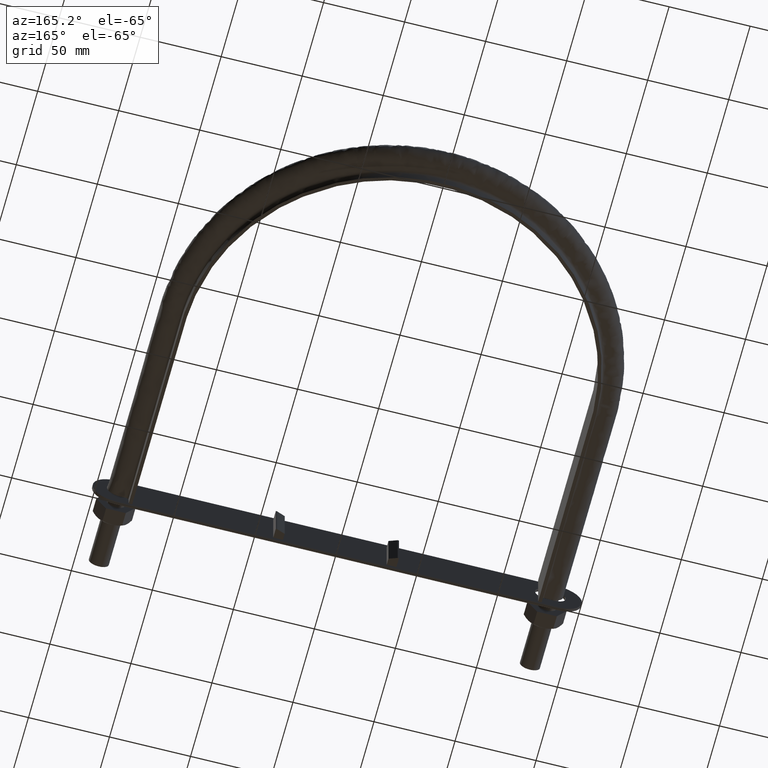
[diagram: clean part render]
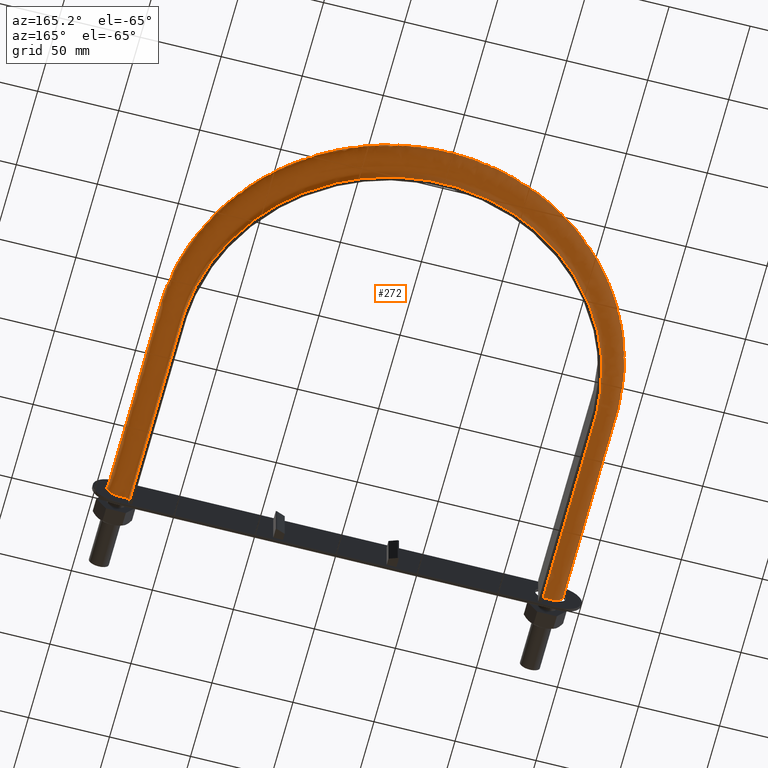
[diagram: same view with one face highlighted and labeled with its STEP entity id]
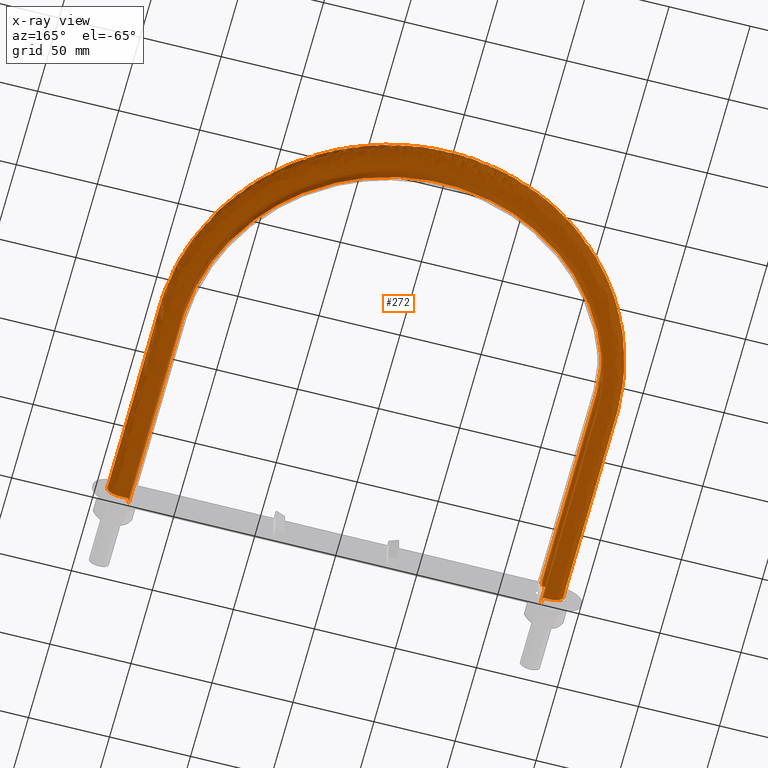
[diagram: x-ray of the same camera — body ghosted, the highlighted face saturated]
A machine part, auxiliary view. The second image highlights one B-rep face of the part: STEP entity #272.
The next image is the same camera in x-ray: the body ghosted, the highlighted face saturated — about 0% of this face is hidden behind the body in this view.
In plain terms, the highlighted face is a freeform B-spline surface patch.
Its self-contained STEP definition (entity closure, byte-faithful):
#272 = ADVANCED_FACE( '', ( #357 ), #358, .F. );
#357 = FACE_OUTER_BOUND( '', #545, .T. );
#358 = B_SPLINE_SURFACE_WITH_KNOTS( '', 3, 3, ( ( #546, #547, #548, #549, #550, #551, #552, #553, #554, #555, #556, #557, #558, #559, #560, #561, #562 ), ( #563, #564, #565, #566, #567, #568, #569, #570, #571, #572, #573, #574, #575, #576, #577, #578, #579 ), ( #580, #581, #582, #583, #584, #585, #586, #587, #588, #589, #590, #591, #592, #593, #594, #595, #596 ), ( #597, #598, #599, #600, #601, #602, #603, #604, #605, #606, #607, #608, #609, #610, #611, #612, #613 ), ( #614, #615, #616, #617, #618, #619, #620, #621, #622, #623, #624, #625, #626, #627, #628, #629, #630 ), ( #631, #632, #633, #634, #635, #636, #637, #638, #639, #640, #641, #642, #643, #644, #645, #646, #647 ), ( #648, #649, #650, #651, #652, #653, #654, #655, #656, #657, #658, #659, #660, #661, #662, #663, #664 ), ( #665, #666, #667, #668, #669, #670, #671, #672, #673, #674, #675, #676, #677, #678, #679, #680, #681 ), ( #682, #683, #684, #685, #686, #687, #688, #689, #690, #691, #692, #693, #694, #695, #696, #697, #698 ), ( #699, #700, #701, #702, #703, #704, #705, #706, #707, #708, #709, #710, #711, #712, #713, #714, #715 ), ( #716, #717, #718, #719, #720, #721, #722, #723, #724, #725, #726, #727, #728, #729, #730, #731, #732 ), ( #733, #734, #735, #736, #737, #738, #739, #740, #741, #742, #743, #744, #745, #746, #747, #748, #749 ), ( #750, #751, #752, #753, #754, #755, #756, #757, #758, #759, #760, #761, #762, #763, #764, #765, #766 ), ( #767, #768, #769, #770, #771, #772, #773, #774, #775, #776, #777, #778, #779, #780, #781, #782, #783 ), ( #784, #785, #786, #787, #788, #789, #790, #791, #792, #793, #794, #795, #796, #797, #798, #799, #800 ), ( #801, #802, #803, #804, #805, #806, #807, #808, #809, #810, #811, #812, #813, #814, #815, #816, #817 ), ( #818, #819, #820, #821, #822, #823, #824, #825, #826, #827, #828, #829, #830, #831, #832, #833, #834 ), ( #835, #836, #837, #838, #839, #840, #841, #842, #843, #844, #845, #846, #847, #848, #849, #850, #851 ), ( #852, #853, #854, #855, #856, #857, #858, #859, #860, #861, #862, #863, #864, #865, #866, #867, #868 ), ( #869, #870, #871, #872, #873, #874, #875, #876, #877, #878, #879, #880, #881, #882, #883, #884, #885 ), ( #886, #887, #888, #889, #890, #891, #892, #893, #894, #895, #896, #897, #898, #899, #900, #901, #902 ), ( #903, #904, #905, #906, #907, #908, #909, #910, #911, #912, #913, #914, #915, #916, #917, #918, #919 ), ( #920, #921, #922, #923, #924, #925, #926, #927, #928, #929, #930, #931, #932, #933, #934, #935, #936 ), ( #937, #938, #939, #940, #941, #942, #943, #944, #945, #946, #947, #948, #949, #950, #951, #952, #953 ), ( #954, #955, #956, #957, #958, #959, #960, #961, #962, #963, #964, #965, #966, #967, #968, #969, #970 ), ( #971, #972, #973, #974, #975, #976, #977, #978, #979, #980, #981, #982, #983, #984, #985, #986, #987 ), ( #988, #989, #990, #991, #992, #993, #994, #995, #996, #997, #998, #999, #1000, #1001, #1002, #1003, #1004 ), ( #1005, #1006, #1007, #1008, #1009, #1010, #1011, #1012, #1013, #1014, #1015, #1016, #1017, #1018, #1019, #1020, #1021 ), ( #1022, #1023, #1024, #1025, #1026, #1027, #1028, #1029, #1030, #1031, #1032, #1033, #1034, #1035, #1036, #1037, #1038 ), ( #1039, #1040, #1041, #1042, #1043, #1044, #1045, #1046, #1047, #1048, #1049, #1050, #1051, #1052, #1053, #1054, #1055 ), ( #1056, #1057, #1058, #1059, #1060, #1061, #1062, #1063, #1064, #1065, #1066, #1067, #1068, #1069, #1070, #1071, #1072 ) ), .UNSPECIFIED., .F., .F., .F., ( 4, 3, 1, 1, 1, 3, 3, 1, 1, 1, 3, 3, 1, 1, 1, 3, 4 ), ( 4, 3, 1, 1, 1, 1, 1, 1, 1, 3, 4 ), ( 0.105263157894737, 0.157894736842105, 0.210526315789474, 0.263157894736842, 0.315789473684211, 0.368421052631579, 0.421052631578947, 0.473684210526316, 0.526315789473684, 0.578947368421053, 0.631578947368421, 0.684210526315789, 0.736842105263158, 0.789473684210526, 0.842105263157895, 0.894736842105263, 0.947368421052632 ), ( 0.000000000000000, 1.00000000000000, 2.00000000000000, 3.00000000000000, 4.00000000000000, 5.00000000000000, 6.00000000000000, 7.00000000000000, 8.00000000000000, 9.00000000000000, 10.0000000000000 ), .UNSPECIFIED. );
#545 = EDGE_LOOP( '', ( #1672, #1673, #1674, #1675 ) );
#546 = CARTESIAN_POINT( '', ( 127.450000000000, 48.5000000000000, -15.0000000000000 ) );
#547 = CARTESIAN_POINT( '', ( 127.450000000000, 89.9166666666666, -15.0000000000000 ) );
#548 = CARTESIAN_POINT( '', ( 127.450000000000, 131.333333333333, -15.0000000000000 ) );
#549 = CARTESIAN_POINT( '', ( 127.450000000000, 172.750000000000, -15.0000000000000 ) );
#550 = CARTESIAN_POINT( '', ( 127.450000000000, 189.421340766093, -15.0000000000000 ) );
#551 = CARTESIAN_POINT( '', ( 120.813917033132, 222.797210917867, -15.0000000000000 ) );
#552 = CARTESIAN_POINT( '', ( 92.4669688954201, 265.215771367909, -15.0000000000000 ) );
#553 = CARTESIAN_POINT( '', ( 50.0427629585410, 293.564259183849, -15.0000000000000 ) );
#554 = CARTESIAN_POINT( '', ( 9.44148659672712E-014, 303.517870408075, -15.0000000000000 ) );
#555 = CARTESIAN_POINT( '', ( -50.0427629585410, 293.564259183849, -15.0000000000000 ) );
#556 = CARTESIAN_POINT( '', ( -92.4669688954201, 265.215771367909, -15.0000000000000 ) );
#557 = CARTESIAN_POINT( '', ( -120.813917033132, 222.797210917867, -15.0000000000000 ) );
#558 = CARTESIAN_POINT( '', ( -127.450000000000, 189.421340766093, -15.0000000000000 ) );
#559 = CARTESIAN_POINT( '', ( -127.450000000000, 172.750000000000, -15.0000000000000 ) );
#560 = CARTESIAN_POINT( '', ( -127.450000000000, 131.333333333333, -15.0000000000000 ) );
#561 = CARTESIAN_POINT( '', ( -127.450000000000, 89.9166666666667, -15.0000000000000 ) );
#562 = CARTESIAN_POINT( '', ( -127.450000000000, 48.5000000000001, -15.0000000000000 ) );
#563 = CARTESIAN_POINT( '', ( 127.450000000000, 48.5000000000000, -13.2666666666667 ) );
#564 = CARTESIAN_POINT( '', ( 127.450000000000, 89.9166666666666, -13.2666666666667 ) );
#565 = CARTESIAN_POINT( '', ( 127.450000000000, 131.333333333333, -13.2666666666667 ) );
#566 = CARTESIAN_POINT( '', ( 127.450000000000, 172.750000000000, -13.2666666666667 ) );
#567 = CARTESIAN_POINT( '', ( 127.450000000000, 189.421340766093, -13.2666666666667 ) );
#568 = CARTESIAN_POINT( '', ( 120.813917033132, 222.797210917867, -13.2666666666667 ) );
#569 = CARTESIAN_POINT( '', ( 92.4669688954201, 265.215771367909, -13.2666666666667 ) );
#570 = CARTESIAN_POINT( '', ( 50.0427629585410, 293.564259183849, -13.2666666666667 ) );
#571 = CARTESIAN_POINT( '', ( 9.44148659672712E-014, 303.517870408075, -13.2666666666667 ) );
#572 = CARTESIAN_POINT( '', ( -50.0427629585410, 293.564259183849, -13.2666666666667 ) );
#573 = CARTESIAN_POINT( '', ( -92.4669688954201, 265.215771367909, -13.2666666666667 ) );
#574 = CARTESIAN_POINT( '', ( -120.813917033132, 222.797210917867, -13.2666666666667 ) );
#575 = CARTESIAN_POINT( '', ( -127.450000000000, 189.421340766093, -13.2666666666667 ) );
#576 = CARTESIAN_POINT( '', ( -127.450000000000, 172.750000000000, -13.2666666666667 ) );
#577 = CARTESIAN_POINT( '', ( -127.450000000000, 131.333333333333, -13.2666666666667 ) );
#578 = CARTESIAN_POINT( '', ( -127.450000000000, 89.9166666666667, -13.2666666666667 ) );
#579 = CARTESIAN_POINT( '', ( -127.450000000000, 48.5000000000001, -13.2666666666667 ) );
#580 = CARTESIAN_POINT( '', ( 127.450000000000, 48.5000000000000, -11.5333333333333 ) );
#581 = CARTESIAN_POINT( '', ( 127.450000000000, 89.9166666666666, -11.5333333333333 ) );
#582 = CARTESIAN_POINT( '', ( 127.450000000000, 131.333333333333, -11.5333333333333 ) );
#583 = CARTESIAN_POINT( '', ( 127.450000000000, 172.750000000000, -11.5333333333333 ) );
#584 = CARTESIAN_POINT( '', ( 127.450000000000, 189.421340766093, -11.5333333333333 ) );
#585 = CARTESIAN_POINT( '', ( 120.813917033132, 222.797210917867, -11.5333333333333 ) );
#586 = CARTESIAN_POINT( '', ( 92.4669688954201, 265.215771367909, -11.5333333333333 ) );
#587 = CARTESIAN_POINT( '', ( 50.0427629585411, 293.564259183849, -11.5333333333333 ) );
#588 = CARTESIAN_POINT( '', ( 9.44148659672712E-014, 303.517870408075, -11.5333333333333 ) );
#589 = CARTESIAN_POINT( '', ( -50.0427629585410, 293.564259183849, -11.5333333333333 ) );
#590 = CARTESIAN_POINT( '', ( -92.4669688954201, 265.215771367909, -11.5333333333333 ) );
#591 = CARTESIAN_POINT( '', ( -120.813917033132, 222.797210917867, -11.5333333333333 ) );
#592 = CARTESIAN_POINT( '', ( -127.450000000000, 189.421340766093, -11.5333333333333 ) );
#593 = CARTESIAN_POINT( '', ( -127.450000000000, 172.750000000000, -11.5333333333333 ) );
#594 = CARTESIAN_POINT( '', ( -127.450000000000, 131.333333333333, -11.5333333333333 ) );
#595 = CARTESIAN_POINT( '', ( -127.450000000000, 89.9166666666667, -11.5333333333333 ) );
#596 = CARTESIAN_POINT( '', ( -127.450000000000, 48.5000000000001, -11.5333333333333 ) );
#597 = CARTESIAN_POINT( '', ( 127.450000000000, 48.5000000000000, -9.79999999999998 ) );
#598 = CARTESIAN_POINT( '', ( 127.450000000000, 89.9166666666666, -9.79999999999998 ) );
#599 = CARTESIAN_POINT( '', ( 127.450000000000, 131.333333333333, -9.79999999999998 ) );
#600 = CARTESIAN_POINT( '', ( 127.450000000000, 172.750000000000, -9.79999999999998 ) );
#601 = CARTESIAN_POINT( '', ( 127.450000000000, 189.421340766093, -9.79999999999999 ) );
#602 = CARTESIAN_POINT( '', ( 120.813917033132, 222.797210917867, -9.80000000000000 ) );
#603 = CARTESIAN_POINT( '', ( 92.4669688954201, 265.215771367909, -9.79999999999998 ) );
#604 = CARTESIAN_POINT( '', ( 50.0427629585411, 293.564259183849, -9.80000000000000 ) );
#605 = CARTESIAN_POINT( '', ( 9.61495894432480E-014, 303.517870408076, -9.79999999999999 ) );
#606 = CARTESIAN_POINT( '', ( -50.0427629585410, 293.564259183849, -9.79999999999998 ) );
#607 = CARTESIAN_POINT( '', ( -92.4669688954201, 265.215771367909, -9.79999999999999 ) );
#608 = CARTESIAN_POINT( '', ( -120.813917033132, 222.797210917867, -9.80000000000000 ) );
#609 = CARTESIAN_POINT( '', ( -127.450000000000, 189.421340766093, -9.79999999999998 ) );
#610 = CARTESIAN_POINT( '', ( -127.450000000000, 172.750000000000, -9.79999999999998 ) );
#611 = CARTESIAN_POINT( '', ( -127.450000000000, 131.333333333333, -9.79999999999998 ) );
#612 = CARTESIAN_POINT( '', ( -127.450000000000, 89.9166666666667, -9.79999999999998 ) );
#613 = CARTESIAN_POINT( '', ( -127.450000000000, 48.5000000000001, -9.79999999999998 ) );
#614 = CARTESIAN_POINT( '', ( 127.450000000000, 48.5000000000000, -9.53823584172332 ) );
#615 = CARTESIAN_POINT( '', ( 127.450000000000, 89.9166666666666, -9.53823584172332 ) );
#616 = CARTESIAN_POINT( '', ( 127.450000000000, 131.333333333333, -9.53823584172332 ) );
#617 = CARTESIAN_POINT( '', ( 127.450000000000, 172.750000000000, -9.53823584172332 ) );
#618 = CARTESIAN_POINT( '', ( 127.450000000000, 189.421340766093, -9.53823584172332 ) );
#619 = CARTESIAN_POINT( '', ( 120.813917033132, 222.797210917867, -9.53823584172333 ) );
#620 = CARTESIAN_POINT( '', ( 92.4669688954201, 265.215771367909, -9.53823584172332 ) );
#621 = CARTESIAN_POINT( '', ( 50.0427629585411, 293.564259183849, -9.53823584172333 ) );
#622 = CARTESIAN_POINT( '', ( 9.61495894432480E-014, 303.517870408075, -9.53823584172333 ) );
#623 = CARTESIAN_POINT( '', ( -50.0427629585410, 293.564259183849, -9.53823584172332 ) );
#624 = CARTESIAN_POINT( '', ( -92.4669688954201, 265.215771367909, -9.53823584172333 ) );
#625 = CARTESIAN_POINT( '', ( -120.813917033132, 222.797210917867, -9.53823584172333 ) );
#626 = CARTESIAN_POINT( '', ( -127.450000000000, 189.421340766093, -9.53823584172332 ) );
#627 = CARTESIAN_POINT( '', ( -127.450000000000, 172.750000000000, -9.53823584172332 ) );
#628 = CARTESIAN_POINT( '', ( -127.450000000000, 131.333333333333, -9.53823584172332 ) );
#629 = CARTESIAN_POINT( '', ( -127.450000000000, 89.9166666666667, -9.53823584172332 ) );
#630 = CARTESIAN_POINT( '', ( -127.450000000000, 48.5000000000001, -9.53823584172332 ) );
#631 = CARTESIAN_POINT( '', ( 127.554136256836, 48.5000000000000, -9.01470752516999 ) );
#632 = CARTESIAN_POINT( '', ( 127.554136256836, 89.9166666666666, -9.01470752516999 ) );
#633 = CARTESIAN_POINT( '', ( 127.554136256836, 131.333333333333, -9.01470752516999 ) );
#634 = CARTESIAN_POINT( '', ( 127.554136256836, 172.750000000000, -9.01470752516999 ) );
#635 = CARTESIAN_POINT( '', ( 127.554136256836, 189.435150092345, -9.01470752517000 ) );
#636 = CARTESIAN_POINT( '', ( 120.912631109974, 222.838016168944, -9.01470752517000 ) );
#637 = CARTESIAN_POINT( '', ( 92.5425213789174, 265.291346320962, -9.01470752516999 ) );
#638 = CARTESIAN_POINT( '', ( 50.0836516679662, 293.662966840818, -9.01470752517000 ) );
#639 = CARTESIAN_POINT( '', ( 9.78973979062978E-014, 303.624720964845, -9.01470752517000 ) );
#640 = CARTESIAN_POINT( '', ( -50.0836516679661, 293.662966840818, -9.01470752516999 ) );
#641 = CARTESIAN_POINT( '', ( -92.5425213789174, 265.291346320962, -9.01470752517000 ) );
#642 = CARTESIAN_POINT( '', ( -120.912631109974, 222.838016168944, -9.01470752517001 ) );
#643 = CARTESIAN_POINT( '', ( -127.554136256836, 189.435150092345, -9.01470752516999 ) );
#644 = CARTESIAN_POINT( '', ( -127.554136256836, 172.750000000000, -9.01470752516999 ) );
#645 = CARTESIAN_POINT( '', ( -127.554136256836, 131.333333333333, -9.01470752516999 ) );
#646 = CARTESIAN_POINT( '', ( -127.554136256836, 89.9166666666667, -9.01470752516999 ) );
#647 = CARTESIAN_POINT( '', ( -127.554136256836, 48.5000000000001, -9.01470752516999 ) );
#648 = CARTESIAN_POINT( '', ( 127.998968710939, 48.5000000000000, -8.34896871093886 ) );
#649 = CARTESIAN_POINT( '', ( 127.998968710939, 89.9166666666666, -8.34896871093886 ) );
#650 = CARTESIAN_POINT( '', ( 127.998968710939, 131.333333333333, -8.34896871093886 ) );
#651 = CARTESIAN_POINT( '', ( 127.998968710939, 172.750000000000, -8.34896871093886 ) );
#652 = CARTESIAN_POINT( '', ( 127.998968710939, 189.494138543367, -8.34896871093886 ) );
#653 = CARTESIAN_POINT( '', ( 121.334301970732, 223.012321454424, -8.34896871093887 ) );
#654 = CARTESIAN_POINT( '', ( 92.8652542835641, 265.614175207428, -8.34896871093886 ) );
#655 = CARTESIAN_POINT( '', ( 50.2583134573498, 294.084610278199, -8.34896871093887 ) );
#656 = CARTESIAN_POINT( '', ( 9.79532922421267E-014, 304.081147927309, -8.34896871093886 ) );
#657 = CARTESIAN_POINT( '', ( -50.2583134573497, 294.084610278199, -8.34896871093886 ) );
#658 = CARTESIAN_POINT( '', ( -92.8652542835640, 265.614175207429, -8.34896871093886 ) );
#659 = CARTESIAN_POINT( '', ( -121.334301970732, 223.012321454424, -8.34896871093887 ) );
#660 = CARTESIAN_POINT( '', ( -127.998968710939, 189.494138543367, -8.34896871093886 ) );
#661 = CARTESIAN_POINT( '', ( -127.998968710939, 172.750000000000, -8.34896871093886 ) );
#662 = CARTESIAN_POINT( '', ( -127.998968710939, 131.333333333333, -8.34896871093886 ) );
#663 = CARTESIAN_POINT( '', ( -127.998968710939, 89.9166666666667, -8.34896871093886 ) );
#664 = CARTESIAN_POINT( '', ( -127.998968710939, 48.5000000000001, -8.34896871093886 ) );
#665 = CARTESIAN_POINT( '', ( 128.664707525170, 48.5000000000000, -7.90413625683589 ) );
#666 = CARTESIAN_POINT( '', ( 128.664707525170, 89.9166666666666, -7.90413625683589 ) );
#667 = CARTESIAN_POINT( '', ( 128.664707525170, 131.333333333333, -7.90413625683589 ) );
#668 = CARTESIAN_POINT( '', ( 128.664707525170, 172.750000000000, -7.90413625683589 ) );
#669 = CARTESIAN_POINT( '', ( 128.664707525170, 189.582420999097, -7.90413625683590 ) );
#670 = CARTESIAN_POINT( '', ( 121.965377010891, 223.273187749137, -7.90413625683590 ) );
#671 = CARTESIAN_POINT( '', ( 93.3482582084600, 266.097322779270, -7.90413625683589 ) );
#672 = CARTESIAN_POINT( '', ( 50.5197132978587, 294.715644276374, -7.90413625683590 ) );
#673 = CARTESIAN_POINT( '', ( 9.63022205512518E-014, 304.764239149568, -7.90413625683590 ) );
#674 = CARTESIAN_POINT( '', ( -50.5197132978587, 294.715644276374, -7.90413625683589 ) );
#675 = CARTESIAN_POINT( '', ( -93.3482582084599, 266.097322779269, -7.90413625683590 ) );
#676 = CARTESIAN_POINT( '', ( -121.965377010891, 223.273187749137, -7.90413625683590 ) );
#677 = CARTESIAN_POINT( '', ( -128.664707525170, 189.582420999097, -7.90413625683589 ) );
#678 = CARTESIAN_POINT( '', ( -128.664707525170, 172.750000000000, -7.90413625683589 ) );
#679 = CARTESIAN_POINT( '', ( -128.664707525170, 131.333333333333, -7.90413625683589 ) );
#680 = CARTESIAN_POINT( '', ( -128.664707525170, 89.9166666666667, -7.90413625683589 ) );
#681 = CARTESIAN_POINT( '', ( -128.664707525170, 48.5000000000001, -7.90413625683589 ) );
#682 = CARTESIAN_POINT( '', ( 129.188235841723, 48.5000000000000, -7.79999999999998 ) );
#683 = CARTESIAN_POINT( '', ( 129.188235841723, 89.9166666666666, -7.79999999999998 ) );
#684 = CARTESIAN_POINT( '', ( 129.188235841723, 131.333333333333, -7.79999999999998 ) );
#685 = CARTESIAN_POINT( '', ( 129.188235841723, 172.750000000000, -7.79999999999998 ) );
#686 = CARTESIAN_POINT( '', ( 129.188235841723, 189.651845170321, -7.79999999999999 ) );
#687 = CARTESIAN_POINT( '', ( 122.461646187828, 223.478329599360, -7.79999999999999 ) );
#688 = CARTESIAN_POINT( '', ( 93.7280861924742, 266.477263725367, -7.79999999999998 ) );
#689 = CARTESIAN_POINT( '', ( 50.7252747215336, 295.211881178430, -7.79999999999999 ) );
#690 = CARTESIAN_POINT( '', ( 9.81027266994942E-014, 305.301413173370, -7.79999999999999 ) );
#691 = CARTESIAN_POINT( '', ( -50.7252747215336, 295.211881178430, -7.79999999999998 ) );
#692 = CARTESIAN_POINT( '', ( -93.7280861924741, 266.477263725367, -7.79999999999999 ) );
#693 = CARTESIAN_POINT( '', ( -122.461646187827, 223.478329599360, -7.79999999999999 ) );
#694 = CARTESIAN_POINT( '', ( -129.188235841723, 189.651845170321, -7.79999999999998 ) );
#695 = CARTESIAN_POINT( '', ( -129.188235841723, 172.750000000000, -7.79999999999998 ) );
#696 = CARTESIAN_POINT( '', ( -129.188235841723, 131.333333333333, -7.79999999999998 ) );
#697 = CARTESIAN_POINT( '', ( -129.188235841723, 89.9166666666667, -7.79999999999998 ) );
#698 = CARTESIAN_POINT( '', ( -129.188235841723, 48.5000000000001, -7.79999999999998 ) );
#699 = CARTESIAN_POINT( '', ( 129.450000000000, 48.5000000000000, -7.79999999999998 ) );
#700 = CARTESIAN_POINT( '', ( 129.450000000000, 89.9166666666666, -7.79999999999998 ) );
#701 = CARTESIAN_POINT( '', ( 129.450000000000, 131.333333333333, -7.79999999999998 ) );
#702 = CARTESIAN_POINT( '', ( 129.450000000000, 172.750000000000, -7.79999999999998 ) );
#703 = CARTESIAN_POINT( '', ( 129.450000000000, 189.686557255933, -7.79999999999999 ) );
#704 = CARTESIAN_POINT( '', ( 122.709780776296, 223.580900524471, -7.79999999999999 ) );
#705 = CARTESIAN_POINT( '', ( 93.9180001844813, 266.667234198416, -7.79999999999998 ) );
#706 = CARTESIAN_POINT( '', ( 50.8280554333711, 295.459999629457, -7.79999999999999 ) );
#707 = CARTESIAN_POINT( '', ( 9.29314476076967E-014, 305.570000185271, -7.79999999999999 ) );
#708 = CARTESIAN_POINT( '', ( -50.8280554333710, 295.459999629457, -7.79999999999998 ) );
#709 = CARTESIAN_POINT( '', ( -93.9180001844812, 266.667234198415, -7.79999999999999 ) );
#710 = CARTESIAN_POINT( '', ( -122.709780776296, 223.580900524472, -7.79999999999999 ) );
#711 = CARTESIAN_POINT( '', ( -129.450000000000, 189.686557255933, -7.79999999999998 ) );
#712 = CARTESIAN_POINT( '', ( -129.450000000000, 172.750000000000, -7.79999999999998 ) );
#713 = CARTESIAN_POINT( '', ( -129.450000000000, 131.333333333333, -7.79999999999998 ) );
#714 = CARTESIAN_POINT( '', ( -129.450000000000, 89.9166666666667, -7.79999999999998 ) );
#715 = CARTESIAN_POINT( '', ( -129.450000000000, 48.5000000000001, -7.79999999999998 ) );
#716 = CARTESIAN_POINT( '', ( 130.633333333333, 48.5000000000000, -7.79999999999999 ) );
#717 = CARTESIAN_POINT( '', ( 130.633333333333, 89.9166666666666, -7.79999999999999 ) );
#718 = CARTESIAN_POINT( '', ( 130.633333333333, 131.333333333333, -7.79999999999999 ) );
#719 = CARTESIAN_POINT( '', ( 130.633333333333, 172.750000000000, -7.79999999999999 ) );
#720 = CARTESIAN_POINT( '', ( 130.633333333333, 189.843477012421, -7.79999999999999 ) );
#721 = CARTESIAN_POINT( '', ( 123.831500157668, 224.044583541712, -7.80000000000000 ) );
#722 = CARTESIAN_POINT( '', ( 94.7765270305091, 267.526016373132, -7.79999999999999 ) );
#723 = CARTESIAN_POINT( '', ( 51.2926868143121, 296.581646059776, -7.80000000000000 ) );
#724 = CARTESIAN_POINT( '', ( 9.48148599442114E-014, 306.784176970112, -7.79999999999999 ) );
#725 = CARTESIAN_POINT( '', ( -51.2926868143121, 296.581646059776, -7.79999999999999 ) );
#726 = CARTESIAN_POINT( '', ( -94.7765270305090, 267.526016373132, -7.79999999999999 ) );
#727 = CARTESIAN_POINT( '', ( -123.831500157668, 224.044583541712, -7.80000000000000 ) );
#728 = CARTESIAN_POINT( '', ( -130.633333333333, 189.843477012421, -7.79999999999999 ) );
#729 = CARTESIAN_POINT( '', ( -130.633333333333, 172.750000000000, -7.79999999999999 ) );
#730 = CARTESIAN_POINT( '', ( -130.633333333333, 131.333333333333, -7.79999999999999 ) );
#731 = CARTESIAN_POINT( '', ( -130.633333333333, 89.9166666666667, -7.79999999999999 ) );
#732 = CARTESIAN_POINT( '', ( -130.633333333333, 48.5000000000001, -7.79999999999999 ) );
#733 = CARTESIAN_POINT( '', ( 131.816666666667, 48.5000000000000, -7.79999999999999 ) );
#734 = CARTESIAN_POINT( '', ( 131.816666666667, 89.9166666666666, -7.79999999999999 ) );
#735 = CARTESIAN_POINT( '', ( 131.816666666667, 131.333333333333, -7.79999999999999 ) );
#736 = CARTESIAN_POINT( '', ( 131.816666666667, 172.750000000000, -7.79999999999999 ) );
#737 = CARTESIAN_POINT( '', ( 131.816666666667, 190.000396768910, -7.79999999999999 ) );
#738 = CARTESIAN_POINT( '', ( 124.953219539040, 224.508266558953, -7.80000000000000 ) );
#739 = CARTESIAN_POINT( '', ( 95.6350538765369, 268.384798547848, -7.79999999999999 ) );
#740 = CARTESIAN_POINT( '', ( 51.7573181952532, 297.703292490094, -7.80000000000000 ) );
#741 = CARTESIAN_POINT( '', ( 8.80246549008422E-014, 307.998353754953, -7.79999999999999 ) );
#742 = CARTESIAN_POINT( '', ( -51.7573181952531, 297.703292490094, -7.79999999999999 ) );
#743 = CARTESIAN_POINT( '', ( -95.6350538765369, 268.384798547848, -7.79999999999999 ) );
#744 = CARTESIAN_POINT( '', ( -124.953219539040, 224.508266558953, -7.80000000000000 ) );
#745 = CARTESIAN_POINT( '', ( -131.816666666667, 190.000396768910, -7.79999999999999 ) );
#746 = CARTESIAN_POINT( '', ( -131.816666666667, 172.750000000000, -7.79999999999999 ) );
#747 = CARTESIAN_POINT( '', ( -131.816666666667, 131.333333333333, -7.79999999999999 ) );
#748 = CARTESIAN_POINT( '', ( -131.816666666667, 89.9166666666667, -7.79999999999999 ) );
#749 = CARTESIAN_POINT( '', ( -131.816666666667, 48.5000000000001, -7.79999999999999 ) );
#750 = CARTESIAN_POINT( '', ( 133.000000000000, 48.5000000000000, -7.79999999999999 ) );
#751 = CARTESIAN_POINT( '', ( 133.000000000000, 89.9166666666666, -7.79999999999999 ) );
#752 = CARTESIAN_POINT( '', ( 133.000000000000, 131.333333333333, -7.79999999999999 ) );
#753 = CARTESIAN_POINT( '', ( 133.000000000000, 172.750000000000, -7.79999999999999 ) );
#754 = CARTESIAN_POINT( '', ( 133.000000000000, 190.157316525398, -7.79999999999999 ) );
#755 = CARTESIAN_POINT( '', ( 126.074938920412, 224.971949576194, -7.80000000000000 ) );
#756 = CARTESIAN_POINT( '', ( 96.4935807225647, 269.243580722565, -7.79999999999999 ) );
#757 = CARTESIAN_POINT( '', ( 52.2219495761943, 298.824938920412, -7.80000000000000 ) );
#758 = CARTESIAN_POINT( '', ( 9.16427907133338E-014, 309.212530539794, -7.79999999999999 ) );
#759 = CARTESIAN_POINT( '', ( -52.2219495761942, 298.824938920412, -7.79999999999999 ) );
#760 = CARTESIAN_POINT( '', ( -96.4935807225647, 269.243580722565, -7.79999999999999 ) );
#761 = CARTESIAN_POINT( '', ( -126.074938920412, 224.971949576194, -7.80000000000000 ) );
#762 = CARTESIAN_POINT( '', ( -133.000000000000, 190.157316525398, -7.79999999999999 ) );
#763 = CARTESIAN_POINT( '', ( -133.000000000000, 172.750000000000, -7.79999999999999 ) );
#764 = CARTESIAN_POINT( '', ( -133.000000000000, 131.333333333333, -7.79999999999999 ) );
#765 = CARTESIAN_POINT( '', ( -133.000000000000, 89.9166666666667, -7.79999999999999 ) );
#766 = CARTESIAN_POINT( '', ( -133.000000000000, 48.5000000000001, -7.79999999999999 ) );
#767 = CARTESIAN_POINT( '', ( 135.037390224717, 48.5000000000000, -7.80000000000000 ) );
#768 = CARTESIAN_POINT( '', ( 135.037390224717, 89.9166666666666, -7.80000000000000 ) );
#769 = CARTESIAN_POINT( '', ( 135.037390224717, 131.333333333333, -7.80000000000000 ) );
#770 = CARTESIAN_POINT( '', ( 135.037390224717, 172.750000000000, -7.80000000000000 ) );
#771 = CARTESIAN_POINT( '', ( 135.037390224717, 190.427491267314, -7.80000000000000 ) );
#772 = CARTESIAN_POINT( '', ( 128.006246049271, 225.770290348048, -7.80000000000001 ) );
#773 = CARTESIAN_POINT( '', ( 97.9717392046107, 270.722178813772, -7.80000000000000 ) );
#774 = CARTESIAN_POINT( '', ( 53.0219231820756, 300.756120446654, -7.80000000000001 ) );
#775 = CARTESIAN_POINT( '', ( 8.66946235791930E-014, 311.303025113749, -7.80000000000000 ) );
#776 = CARTESIAN_POINT( '', ( -53.0219231820755, 300.756120446654, -7.80000000000000 ) );
#777 = CARTESIAN_POINT( '', ( -97.9717392046106, 270.722178813772, -7.80000000000000 ) );
#778 = CARTESIAN_POINT( '', ( -128.006246049271, 225.770290348048, -7.80000000000001 ) );
#779 = CARTESIAN_POINT( '', ( -135.037390224717, 190.427491267315, -7.80000000000000 ) );
#780 = CARTESIAN_POINT( '', ( -135.037390224717, 172.750000000000, -7.80000000000000 ) );
#781 = CARTESIAN_POINT( '', ( -135.037390224717, 131.333333333333, -7.80000000000000 ) );
#782 = CARTESIAN_POINT( '', ( -135.037390224717, 89.9166666666667, -7.80000000000000 ) );
#783 = CARTESIAN_POINT( '', ( -135.037390224717, 48.5000000000001, -7.80000000000000 ) );
#784 = CARTESIAN_POINT( '', ( 139.112170674152, 48.5000000000000, -6.11217067415155 ) );
#785 = CARTESIAN_POINT( '', ( 139.112170674152, 89.9166666666666, -6.11217067415155 ) );
#786 = CARTESIAN_POINT( '', ( 139.112170674152, 131.333333333333, -6.11217067415155 ) );
#787 = CARTESIAN_POINT( '', ( 139.112170674152, 172.750000000000, -6.11217067415155 ) );
#788 = CARTESIAN_POINT( '', ( 139.112170674152, 190.967840751147, -6.11217067415155 ) );
#789 = CARTESIAN_POINT( '', ( 131.868860306989, 227.366971891757, -6.11217067415156 ) );
#790 = CARTESIAN_POINT( '', ( 100.928056168703, 273.679374996186, -6.11217067415155 ) );
#791 = CARTESIAN_POINT( '', ( 54.6218703938381, 304.618483499137, -6.11217067415156 ) );
#792 = CARTESIAN_POINT( '', ( 8.02677362628651E-014, 315.484014261659, -6.11217067415155 ) );
#793 = CARTESIAN_POINT( '', ( -54.6218703938381, 304.618483499137, -6.11217067415155 ) );
#794 = CARTESIAN_POINT( '', ( -100.928056168703, 273.679374996186, -6.11217067415155 ) );
#795 = CARTESIAN_POINT( '', ( -131.868860306989, 227.366971891756, -6.11217067415156 ) );
#796 = CARTESIAN_POINT( '', ( -139.112170674151, 190.967840751147, -6.11217067415155 ) );
#797 = CARTESIAN_POINT( '', ( -139.112170674151, 172.750000000000, -6.11217067415155 ) );
#798 = CARTESIAN_POINT( '', ( -139.112170674151, 131.333333333333, -6.11217067415155 ) );
#799 = CARTESIAN_POINT( '', ( -139.112170674151, 89.9166666666667, -6.11217067415155 ) );
#800 = CARTESIAN_POINT( '', ( -139.112170674152, 48.5000000000001, -6.11217067415155 ) );
#801 = CARTESIAN_POINT( '', ( 141.643914662924, 48.5000000000000, -2.58929722408951E-015 ) );
#802 = CARTESIAN_POINT( '', ( 141.643914662924, 89.9166666666666, -2.58929722408951E-015 ) );
#803 = CARTESIAN_POINT( '', ( 141.643914662924, 131.333333333333, -2.58929722408951E-015 ) );
#804 = CARTESIAN_POINT( '', ( 141.643914662924, 172.750000000000, -2.58929722408951E-015 ) );
#805 = CARTESIAN_POINT( '', ( 141.643914662924, 191.303570878085, -2.58929722408951E-015 ) );
#806 = CARTESIAN_POINT( '', ( 134.268781124633, 228.359022617049, -2.58929722408952E-015 ) );
#807 = CARTESIAN_POINT( '', ( 102.764876040503, 275.516741144217, -2.58929722408951E-015 ) );
#808 = CARTESIAN_POINT( '', ( 55.6159501451278, 307.018248237858, -2.58929722408952E-015 ) );
#809 = CARTESIAN_POINT( '', ( 7.71164094198110E-014, 318.081747875457, -2.58929722408951E-015 ) );
#810 = CARTESIAN_POINT( '', ( -55.6159501451277, 307.018248237858, -2.58929722408951E-015 ) );
#811 = CARTESIAN_POINT( '', ( -102.764876040503, 275.516741144217, -2.58929722408951E-015 ) );
#812 = CARTESIAN_POINT( '', ( -134.268781124633, 228.359022617049, -2.58929722408952E-015 ) );
#813 = CARTESIAN_POINT( '', ( -141.643914662924, 191.303570878085, -2.58929722408951E-015 ) );
#814 = CARTESIAN_POINT( '', ( -141.643914662924, 172.750000000000, -2.58929722408951E-015 ) );
#815 = CARTESIAN_POINT( '', ( -141.643914662924, 131.333333333333, -2.58929722408951E-015 ) );
#816 = CARTESIAN_POINT( '', ( -141.643914662924, 89.9166666666667, -2.58929722408951E-015 ) );
#817 = CARTESIAN_POINT( '', ( -141.643914662924, 48.5000000000001, -2.58929722408951E-015 ) );
#818 = CARTESIAN_POINT( '', ( 139.112170674152, 48.5000000000000, 6.11217067415155 ) );
#819 = CARTESIAN_POINT( '', ( 139.112170674152, 89.9166666666666, 6.11217067415155 ) );
#820 = CARTESIAN_POINT( '', ( 139.112170674152, 131.333333333333, 6.11217067415155 ) );
#821 = CARTESIAN_POINT( '', ( 139.112170674152, 172.750000000000, 6.11217067415155 ) );
#822 = CARTESIAN_POINT( '', ( 139.112170674152, 190.967840751147, 6.11217067415155 ) );
#823 = CARTESIAN_POINT( '', ( 131.868860306989, 227.366971891757, 6.11217067415155 ) );
#824 = CARTESIAN_POINT( '', ( 100.928056168703, 273.679374996186, 6.11217067415155 ) );
#825 = CARTESIAN_POINT( '', ( 54.6218703938381, 304.618483499137, 6.11217067415155 ) );
#826 = CARTESIAN_POINT( '', ( 8.37371832148187E-014, 315.484014261659, 6.11217067415155 ) );
#827 = CARTESIAN_POINT( '', ( -54.6218703938381, 304.618483499137, 6.11217067415155 ) );
#828 = CARTESIAN_POINT( '', ( -100.928056168703, 273.679374996186, 6.11217067415155 ) );
#829 = CARTESIAN_POINT( '', ( -131.868860306989, 227.366971891756, 6.11217067415156 ) );
#830 = CARTESIAN_POINT( '', ( -139.112170674151, 190.967840751147, 6.11217067415155 ) );
#831 = CARTESIAN_POINT( '', ( -139.112170674151, 172.750000000000, 6.11217067415155 ) );
#832 = CARTESIAN_POINT( '', ( -139.112170674151, 131.333333333333, 6.11217067415155 ) );
#833 = CARTESIAN_POINT( '', ( -139.112170674151, 89.9166666666667, 6.11217067415155 ) );
#834 = CARTESIAN_POINT( '', ( -139.112170674152, 48.5000000000001, 6.11217067415155 ) );
#835 = CARTESIAN_POINT( '', ( 135.037390224717, 48.5000000000000, 7.80000000000000 ) );
#836 = CARTESIAN_POINT( '', ( 135.037390224717, 89.9166666666666, 7.80000000000000 ) );
#837 = CARTESIAN_POINT( '', ( 135.037390224717, 131.333333333333, 7.80000000000000 ) );
#838 = CARTESIAN_POINT( '', ( 135.037390224717, 172.750000000000, 7.80000000000000 ) );
#839 = CARTESIAN_POINT( '', ( 135.037390224717, 190.427491267314, 7.80000000000000 ) );
#840 = CARTESIAN_POINT( '', ( 128.006246049271, 225.770290348048, 7.80000000000001 ) );
#841 = CARTESIAN_POINT( '', ( 97.9717392046107, 270.722178813772, 7.80000000000000 ) );
#842 = CARTESIAN_POINT( '', ( 53.0219231820756, 300.756120446654, 7.80000000000001 ) );
#843 = CARTESIAN_POINT( '', ( 8.66946235791930E-014, 311.303025113749, 7.80000000000000 ) );
#844 = CARTESIAN_POINT( '', ( -53.0219231820755, 300.756120446654, 7.79999999999999 ) );
#845 = CARTESIAN_POINT( '', ( -97.9717392046106, 270.722178813772, 7.80000000000000 ) );
#846 = CARTESIAN_POINT( '', ( -128.006246049271, 225.770290348048, 7.80000000000001 ) );
#847 = CARTESIAN_POINT( '', ( -135.037390224717, 190.427491267315, 7.80000000000000 ) );
#848 = CARTESIAN_POINT( '', ( -135.037390224717, 172.750000000000, 7.80000000000000 ) );
#849 = CARTESIAN_POINT( '', ( -135.037390224717, 131.333333333333, 7.80000000000000 ) );
#850 = CARTESIAN_POINT( '', ( -135.037390224717, 89.9166666666667, 7.80000000000000 ) );
#851 = CARTESIAN_POINT( '', ( -135.037390224717, 48.5000000000001, 7.80000000000000 ) );
#852 = CARTESIAN_POINT( '', ( 133.000000000000, 48.5000000000000, 7.80000000000000 ) );
#853 = CARTESIAN_POINT( '', ( 133.000000000000, 89.9166666666666, 7.80000000000000 ) );
#854 = CARTESIAN_POINT( '', ( 133.000000000000, 131.333333333333, 7.80000000000000 ) );
#855 = CARTESIAN_POINT( '', ( 133.000000000000, 172.750000000000, 7.80000000000000 ) );
#856 = CARTESIAN_POINT( '', ( 133.000000000000, 190.157316525398, 7.80000000000000 ) );
#857 = CARTESIAN_POINT( '', ( 126.074938920412, 224.971949576194, 7.80000000000001 ) );
#858 = CARTESIAN_POINT( '', ( 96.4935807225648, 269.243580722565, 7.80000000000000 ) );
#859 = CARTESIAN_POINT( '', ( 52.2219495761943, 298.824938920412, 7.80000000000001 ) );
#860 = CARTESIAN_POINT( '', ( 8.64386202854034E-014, 309.212530539794, 7.80000000000000 ) );
#861 = CARTESIAN_POINT( '', ( -52.2219495761942, 298.824938920412, 7.79999999999999 ) );
#862 = CARTESIAN_POINT( '', ( -96.4935807225647, 269.243580722565, 7.80000000000000 ) );
#863 = CARTESIAN_POINT( '', ( -126.074938920412, 224.971949576194, 7.80000000000001 ) );
#864 = CARTESIAN_POINT( '', ( -133.000000000000, 190.157316525398, 7.80000000000000 ) );
#865 = CARTESIAN_POINT( '', ( -133.000000000000, 172.750000000000, 7.80000000000000 ) );
#866 = CARTESIAN_POINT( '', ( -133.000000000000, 131.333333333333, 7.80000000000000 ) );
#867 = CARTESIAN_POINT( '', ( -133.000000000000, 89.9166666666667, 7.80000000000000 ) );
#868 = CARTESIAN_POINT( '', ( -133.000000000000, 48.5000000000001, 7.80000000000000 ) );
#869 = CARTESIAN_POINT( '', ( 131.816666666667, 48.5000000000000, 7.79999999999999 ) );
#870 = CARTESIAN_POINT( '', ( 131.816666666667, 89.9166666666666, 7.79999999999999 ) );
#871 = CARTESIAN_POINT( '', ( 131.816666666667, 131.333333333333, 7.79999999999999 ) );
#872 = CARTESIAN_POINT( '', ( 131.816666666667, 172.750000000000, 7.79999999999999 ) );
#873 = CARTESIAN_POINT( '', ( 131.816666666667, 190.000396768910, 7.79999999999999 ) );
#874 = CARTESIAN_POINT( '', ( 124.953219539040, 224.508266558953, 7.80000000000000 ) );
#875 = CARTESIAN_POINT( '', ( 95.6350538765369, 268.384798547848, 7.79999999999999 ) );
#876 = CARTESIAN_POINT( '', ( 51.7573181952532, 297.703292490094, 7.80000000000000 ) );
#877 = CARTESIAN_POINT( '', ( 8.28204844729118E-014, 307.998353754953, 7.79999999999999 ) );
#878 = CARTESIAN_POINT( '', ( -51.7573181952531, 297.703292490094, 7.79999999999999 ) );
#879 = CARTESIAN_POINT( '', ( -95.6350538765369, 268.384798547848, 7.79999999999999 ) );
#880 = CARTESIAN_POINT( '', ( -124.953219539040, 224.508266558953, 7.80000000000000 ) );
#881 = CARTESIAN_POINT( '', ( -131.816666666667, 190.000396768910, 7.79999999999999 ) );
#882 = CARTESIAN_POINT( '', ( -131.816666666667, 172.750000000000, 7.79999999999999 ) );
#883 = CARTESIAN_POINT( '', ( -131.816666666667, 131.333333333333, 7.79999999999999 ) );
#884 = CARTESIAN_POINT( '', ( -131.816666666667, 89.9166666666667, 7.79999999999999 ) );
#885 = CARTESIAN_POINT( '', ( -131.816666666667, 48.5000000000001, 7.79999999999999 ) );
#886 = CARTESIAN_POINT( '', ( 130.633333333333, 48.5000000000000, 7.79999999999999 ) );
#887 = CARTESIAN_POINT( '', ( 130.633333333333, 89.9166666666666, 7.79999999999999 ) );
#888 = CARTESIAN_POINT( '', ( 130.633333333333, 131.333333333333, 7.79999999999999 ) );
#889 = CARTESIAN_POINT( '', ( 130.633333333333, 172.750000000000, 7.79999999999999 ) );
#890 = CARTESIAN_POINT( '', ( 130.633333333333, 189.843477012421, 7.79999999999999 ) );
#891 = CARTESIAN_POINT( '', ( 123.831500157668, 224.044583541712, 7.80000000000000 ) );
#892 = CARTESIAN_POINT( '', ( 94.7765270305091, 267.526016373132, 7.79999999999999 ) );
#893 = CARTESIAN_POINT( '', ( 51.2926868143121, 296.581646059776, 7.80000000000000 ) );
#894 = CARTESIAN_POINT( '', ( 8.09370721363970E-014, 306.784176970112, 7.79999999999999 ) );
#895 = CARTESIAN_POINT( '', ( -51.2926868143121, 296.581646059776, 7.79999999999999 ) );
#896 = CARTESIAN_POINT( '', ( -94.7765270305091, 267.526016373132, 7.79999999999999 ) );
#897 = CARTESIAN_POINT( '', ( -123.831500157668, 224.044583541712, 7.80000000000000 ) );
#898 = CARTESIAN_POINT( '', ( -130.633333333333, 189.843477012421, 7.79999999999999 ) );
#899 = CARTESIAN_POINT( '', ( -130.633333333333, 172.750000000000, 7.79999999999999 ) );
#900 = CARTESIAN_POINT( '', ( -130.633333333333, 131.333333333333, 7.79999999999999 ) );
#901 = CARTESIAN_POINT( '', ( -130.633333333333, 89.9166666666667, 7.79999999999999 ) );
#902 = CARTESIAN_POINT( '', ( -130.633333333333, 48.5000000000001, 7.79999999999999 ) );
#903 = CARTESIAN_POINT( '', ( 129.450000000000, 48.5000000000000, 7.79999999999999 ) );
#904 = CARTESIAN_POINT( '', ( 129.450000000000, 89.9166666666666, 7.79999999999999 ) );
#905 = CARTESIAN_POINT( '', ( 129.450000000000, 131.333333333333, 7.79999999999999 ) );
#906 = CARTESIAN_POINT( '', ( 129.450000000000, 172.750000000000, 7.79999999999999 ) );
#907 = CARTESIAN_POINT( '', ( 129.450000000000, 189.686557255933, 7.79999999999999 ) );
#908 = CARTESIAN_POINT( '', ( 122.709780776296, 223.580900524471, 7.80000000000000 ) );
#909 = CARTESIAN_POINT( '', ( 93.9180001844812, 266.667234198416, 7.79999999999999 ) );
#910 = CARTESIAN_POINT( '', ( 50.8280554333710, 295.459999629457, 7.80000000000000 ) );
#911 = CARTESIAN_POINT( '', ( 8.42578302278126E-014, 305.570000185271, 7.79999999999999 ) );
#912 = CARTESIAN_POINT( '', ( -50.8280554333710, 295.459999629457, 7.79999999999999 ) );
#913 = CARTESIAN_POINT( '', ( -93.9180001844812, 266.667234198415, 7.79999999999999 ) );
#914 = CARTESIAN_POINT( '', ( -122.709780776296, 223.580900524471, 7.80000000000000 ) );
#915 = CARTESIAN_POINT( '', ( -129.450000000000, 189.686557255933, 7.79999999999999 ) );
#916 = CARTESIAN_POINT( '', ( -129.450000000000, 172.750000000000, 7.79999999999999 ) );
#917 = CARTESIAN_POINT( '', ( -129.450000000000, 131.333333333333, 7.79999999999999 ) );
#918 = CARTESIAN_POINT( '', ( -129.450000000000, 89.9166666666667, 7.79999999999999 ) );
#919 = CARTESIAN_POINT( '', ( -129.450000000000, 48.5000000000001, 7.79999999999999 ) );
#920 = CARTESIAN_POINT( '', ( 129.188235841723, 48.5000000000000, 7.79999999999999 ) );
#921 = CARTESIAN_POINT( '', ( 129.188235841723, 89.9166666666666, 7.79999999999999 ) );
#922 = CARTESIAN_POINT( '', ( 129.188235841723, 131.333333333333, 7.79999999999999 ) );
#923 = CARTESIAN_POINT( '', ( 129.188235841723, 172.750000000000, 7.79999999999999 ) );
#924 = CARTESIAN_POINT( '', ( 129.188235841723, 189.651845170321, 7.79999999999999 ) );
#925 = CARTESIAN_POINT( '', ( 122.461646187828, 223.478329599360, 7.80000000000000 ) );
#926 = CARTESIAN_POINT( '', ( 93.7280861924742, 266.477263725367, 7.79999999999999 ) );
#927 = CARTESIAN_POINT( '', ( 50.7252747215336, 295.211881178430, 7.80000000000000 ) );
#928 = CARTESIAN_POINT( '', ( 8.76943858436334E-014, 305.301413173370, 7.79999999999999 ) );
#929 = CARTESIAN_POINT( '', ( -50.7252747215336, 295.211881178430, 7.79999999999999 ) );
#930 = CARTESIAN_POINT( '', ( -93.7280861924741, 266.477263725367, 7.80000000000000 ) );
#931 = CARTESIAN_POINT( '', ( -122.461646187827, 223.478329599360, 7.80000000000000 ) );
#932 = CARTESIAN_POINT( '', ( -129.188235841723, 189.651845170321, 7.79999999999999 ) );
#933 = CARTESIAN_POINT( '', ( -129.188235841723, 172.750000000000, 7.79999999999999 ) );
#934 = CARTESIAN_POINT( '', ( -129.188235841723, 131.333333333333, 7.79999999999999 ) );
#935 = CARTESIAN_POINT( '', ( -129.188235841723, 89.9166666666667, 7.79999999999999 ) );
#936 = CARTESIAN_POINT( '', ( -129.188235841723, 48.5000000000001, 7.79999999999999 ) );
#937 = CARTESIAN_POINT( '', ( 128.664707525170, 48.5000000000000, 7.90413625683590 ) );
#938 = CARTESIAN_POINT( '', ( 128.664707525170, 89.9166666666666, 7.90413625683590 ) );
#939 = CARTESIAN_POINT( '', ( 128.664707525170, 131.333333333333, 7.90413625683590 ) );
#940 = CARTESIAN_POINT( '', ( 128.664707525170, 172.750000000000, 7.90413625683590 ) );
#941 = CARTESIAN_POINT( '', ( 128.664707525170, 189.582420999097, 7.90413625683590 ) );
#942 = CARTESIAN_POINT( '', ( 121.965377010891, 223.273187749137, 7.90413625683591 ) );
#943 = CARTESIAN_POINT( '', ( 93.3482582084600, 266.097322779269, 7.90413625683590 ) );
#944 = CARTESIAN_POINT( '', ( 50.5197132978587, 294.715644276374, 7.90413625683591 ) );
#945 = CARTESIAN_POINT( '', ( 8.93633266473446E-014, 304.764239149568, 7.90413625683590 ) );
#946 = CARTESIAN_POINT( '', ( -50.5197132978587, 294.715644276374, 7.90413625683590 ) );
#947 = CARTESIAN_POINT( '', ( -93.3482582084599, 266.097322779269, 7.90413625683590 ) );
#948 = CARTESIAN_POINT( '', ( -121.965377010891, 223.273187749137, 7.90413625683591 ) );
#949 = CARTESIAN_POINT( '', ( -128.664707525170, 189.582420999097, 7.90413625683590 ) );
#950 = CARTESIAN_POINT( '', ( -128.664707525170, 172.750000000000, 7.90413625683590 ) );
#951 = CARTESIAN_POINT( '', ( -128.664707525170, 131.333333333333, 7.90413625683590 ) );
#952 = CARTESIAN_POINT( '', ( -128.664707525170, 89.9166666666667, 7.90413625683590 ) );
#953 = CARTESIAN_POINT( '', ( -128.664707525170, 48.5000000000001, 7.90413625683590 ) );
#954 = CARTESIAN_POINT( '', ( 127.998968710939, 48.5000000000000, 8.34896871093887 ) );
#955 = CARTESIAN_POINT( '', ( 127.998968710939, 89.9166666666666, 8.34896871093887 ) );
#956 = CARTESIAN_POINT( '', ( 127.998968710939, 131.333333333333, 8.34896871093887 ) );
#957 = CARTESIAN_POINT( '', ( 127.998968710939, 172.750000000000, 8.34896871093887 ) );
#958 = CARTESIAN_POINT( '', ( 127.998968710939, 189.494138543367, 8.34896871093887 ) );
#959 = CARTESIAN_POINT( '', ( 121.334301970732, 223.012321454424, 8.34896871093888 ) );
#960 = CARTESIAN_POINT( '', ( 92.8652542835640, 265.614175207429, 8.34896871093887 ) );
#961 = CARTESIAN_POINT( '', ( 50.2583134573498, 294.084610278199, 8.34896871093888 ) );
#962 = CARTESIAN_POINT( '', ( 9.10143983382195E-014, 304.081147927309, 8.34896871093887 ) );
#963 = CARTESIAN_POINT( '', ( -50.2583134573497, 294.084610278199, 8.34896871093887 ) );
#964 = CARTESIAN_POINT( '', ( -92.8652542835640, 265.614175207428, 8.34896871093887 ) );
#965 = CARTESIAN_POINT( '', ( -121.334301970732, 223.012321454424, 8.34896871093888 ) );
#966 = CARTESIAN_POINT( '', ( -127.998968710939, 189.494138543367, 8.34896871093887 ) );
#967 = CARTESIAN_POINT( '', ( -127.998968710939, 172.750000000000, 8.34896871093887 ) );
#968 = CARTESIAN_POINT( '', ( -127.998968710939, 131.333333333333, 8.34896871093887 ) );
#969 = CARTESIAN_POINT( '', ( -127.998968710939, 89.9166666666667, 8.34896871093887 ) );
#970 = CARTESIAN_POINT( '', ( -127.998968710939, 48.5000000000001, 8.34896871093887 ) );
#971 = CARTESIAN_POINT( '', ( 127.554136256836, 48.5000000000000, 9.01470752517000 ) );
#972 = CARTESIAN_POINT( '', ( 127.554136256836, 89.9166666666666, 9.01470752517000 ) );
#973 = CARTESIAN_POINT( '', ( 127.554136256836, 131.333333333333, 9.01470752517000 ) );
#974 = CARTESIAN_POINT( '', ( 127.554136256836, 172.750000000000, 9.01470752517000 ) );
#975 = CARTESIAN_POINT( '', ( 127.554136256836, 189.435150092345, 9.01470752517000 ) );
#976 = CARTESIAN_POINT( '', ( 120.912631109974, 222.838016168944, 9.01470752517001 ) );
#977 = CARTESIAN_POINT( '', ( 92.5425213789174, 265.291346320962, 9.01470752517000 ) );
#978 = CARTESIAN_POINT( '', ( 50.0836516679661, 293.662966840818, 9.01470752517001 ) );
#979 = CARTESIAN_POINT( '', ( 9.09585040023906E-014, 303.624720964845, 9.01470752517000 ) );
#980 = CARTESIAN_POINT( '', ( -50.0836516679661, 293.662966840818, 9.01470752517000 ) );
#981 = CARTESIAN_POINT( '', ( -92.5425213789174, 265.291346320962, 9.01470752517000 ) );
#982 = CARTESIAN_POINT( '', ( -120.912631109974, 222.838016168944, 9.01470752517001 ) );
#983 = CARTESIAN_POINT( '', ( -127.554136256836, 189.435150092345, 9.01470752517000 ) );
#984 = CARTESIAN_POINT( '', ( -127.554136256836, 172.750000000000, 9.01470752517000 ) );
#985 = CARTESIAN_POINT( '', ( -127.554136256836, 131.333333333333, 9.01470752517000 ) );
#986 = CARTESIAN_POINT( '', ( -127.554136256836, 89.9166666666667, 9.01470752517000 ) );
#987 = CARTESIAN_POINT( '', ( -127.554136256836, 48.5000000000001, 9.01470752517000 ) );
#988 = CARTESIAN_POINT( '', ( 127.450000000000, 48.5000000000000, 9.53823584172333 ) );
#989 = CARTESIAN_POINT( '', ( 127.450000000000, 89.9166666666666, 9.53823584172333 ) );
#990 = CARTESIAN_POINT( '', ( 127.450000000000, 131.333333333333, 9.53823584172333 ) );
#991 = CARTESIAN_POINT( '', ( 127.450000000000, 172.750000000000, 9.53823584172333 ) );
#992 = CARTESIAN_POINT( '', ( 127.450000000000, 189.421340766093, 9.53823584172333 ) );
#993 = CARTESIAN_POINT( '', ( 120.813917033132, 222.797210917867, 9.53823584172334 ) );
#994 = CARTESIAN_POINT( '', ( 92.4669688954201, 265.215771367909, 9.53823584172333 ) );
#995 = CARTESIAN_POINT( '', ( 50.0427629585410, 293.564259183849, 9.53823584172334 ) );
#996 = CARTESIAN_POINT( '', ( 9.26801424912944E-014, 303.517870408075, 9.53823584172333 ) );
#997 = CARTESIAN_POINT( '', ( -50.0427629585410, 293.564259183849, 9.53823584172332 ) );
#998 = CARTESIAN_POINT( '', ( -92.4669688954201, 265.215771367909, 9.53823584172333 ) );
#999 = CARTESIAN_POINT( '', ( -120.813917033132, 222.797210917867, 9.53823584172334 ) );
#1000 = CARTESIAN_POINT( '', ( -127.450000000000, 189.421340766093, 9.53823584172333 ) );
#1001 = CARTESIAN_POINT( '', ( -127.450000000000, 172.750000000000, 9.53823584172333 ) );
#1002 = CARTESIAN_POINT( '', ( -127.450000000000, 131.333333333333, 9.53823584172333 ) );
#1003 = CARTESIAN_POINT( '', ( -127.450000000000, 89.9166666666667, 9.53823584172333 ) );
#1004 = CARTESIAN_POINT( '', ( -127.450000000000, 48.5000000000001, 9.53823584172333 ) );
#1005 = CARTESIAN_POINT( '', ( 127.450000000000, 48.5000000000000, 9.79999999999999 ) );
#1006 = CARTESIAN_POINT( '', ( 127.450000000000, 89.9166666666666, 9.79999999999999 ) );
#1007 = CARTESIAN_POINT( '', ( 127.450000000000, 131.333333333333, 9.79999999999999 ) );
#1008 = CARTESIAN_POINT( '', ( 127.450000000000, 172.750000000000, 9.79999999999999 ) );
#1009 = CARTESIAN_POINT( '', ( 127.450000000000, 189.421340766093, 9.79999999999999 ) );
#1010 = CARTESIAN_POINT( '', ( 120.813917033132, 222.797210917867, 9.80000000000000 ) );
#1011 = CARTESIAN_POINT( '', ( 92.4669688954201, 265.215771367909, 9.79999999999999 ) );
#1012 = CARTESIAN_POINT( '', ( 50.0427629585410, 293.564259183849, 9.80000000000000 ) );
#1013 = CARTESIAN_POINT( '', ( 9.26801424912944E-014, 303.517870408075, 9.79999999999999 ) );
#1014 = CARTESIAN_POINT( '', ( -50.0427629585410, 293.564259183849, 9.79999999999999 ) );
#1015 = CARTESIAN_POINT( '', ( -92.4669688954201, 265.215771367909, 9.79999999999999 ) );
#1016 = CARTESIAN_POINT( '', ( -120.813917033132, 222.797210917867, 9.80000000000000 ) );
#1017 = CARTESIAN_POINT( '', ( -127.450000000000, 189.421340766093, 9.79999999999999 ) );
#1018 = CARTESIAN_POINT( '', ( -127.450000000000, 172.750000000000, 9.79999999999999 ) );
#1019 = CARTESIAN_POINT( '', ( -127.450000000000, 131.333333333333, 9.79999999999999 ) );
#1020 = CARTESIAN_POINT( '', ( -127.450000000000, 89.9166666666667, 9.79999999999999 ) );
#1021 = CARTESIAN_POINT( '', ( -127.450000000000, 48.5000000000001, 9.79999999999999 ) );
#1022 = CARTESIAN_POINT( '', ( 127.450000000000, 48.5000000000000, 11.5333333333333 ) );
#1023 = CARTESIAN_POINT( '', ( 127.450000000000, 89.9166666666666, 11.5333333333333 ) );
#1024 = CARTESIAN_POINT( '', ( 127.450000000000, 131.333333333333, 11.5333333333333 ) );
#1025 = CARTESIAN_POINT( '', ( 127.450000000000, 172.750000000000, 11.5333333333333 ) );
#1026 = CARTESIAN_POINT( '', ( 127.450000000000, 189.421340766093, 11.5333333333333 ) );
#1027 = CARTESIAN_POINT( '', ( 120.813917033132, 222.797210917867, 11.5333333333333 ) );
#1028 = CARTESIAN_POINT( '', ( 92.4669688954201, 265.215771367909, 11.5333333333333 ) );
#1029 = CARTESIAN_POINT( '', ( 50.0427629585411, 293.564259183849, 11.5333333333333 ) );
#1030 = CARTESIAN_POINT( '', ( 8.92106955393408E-014, 303.517870408075, 11.5333333333333 ) );
#1031 = CARTESIAN_POINT( '', ( -50.0427629585410, 293.564259183849, 11.5333333333333 ) );
#1032 = CARTESIAN_POINT( '', ( -92.4669688954201, 265.215771367909, 11.5333333333333 ) );
#1033 = CARTESIAN_POINT( '', ( -120.813917033132, 222.797210917867, 11.5333333333333 ) );
#1034 = CARTESIAN_POINT( '', ( -127.450000000000, 189.421340766093, 11.5333333333333 ) );
#1035 = CARTESIAN_POINT( '', ( -127.450000000000, 172.750000000000, 11.5333333333333 ) );
#1036 = CARTESIAN_POINT( '', ( -127.450000000000, 131.333333333333, 11.5333333333333 ) );
#1037 = CARTESIAN_POINT( '', ( -127.450000000000, 89.9166666666667, 11.5333333333333 ) );
#1038 = CARTESIAN_POINT( '', ( -127.450000000000, 48.5000000000001, 11.5333333333333 ) );
#1039 = CARTESIAN_POINT( '', ( 127.450000000000, 48.5000000000000, 13.2666666666666 ) );
#1040 = CARTESIAN_POINT( '', ( 127.450000000000, 89.9166666666666, 13.2666666666666 ) );
#1041 = CARTESIAN_POINT( '', ( 127.450000000000, 131.333333333333, 13.2666666666666 ) );
#1042 = CARTESIAN_POINT( '', ( 127.450000000000, 172.750000000000, 13.2666666666666 ) );
#1043 = CARTESIAN_POINT( '', ( 127.450000000000, 189.421340766093, 13.2666666666666 ) );
#1044 = CARTESIAN_POINT( '', ( 120.813917033132, 222.797210917867, 13.2666666666667 ) );
#1045 = CARTESIAN_POINT( '', ( 92.4669688954201, 265.215771367909, 13.2666666666666 ) );
#1046 = CARTESIAN_POINT( '', ( 50.0427629585411, 293.564259183849, 13.2666666666667 ) );
#1047 = CARTESIAN_POINT( '', ( 8.92106955393408E-014, 303.517870408075, 13.2666666666666 ) );
#1048 = CARTESIAN_POINT( '', ( -50.0427629585410, 293.564259183849, 13.2666666666666 ) );
#1049 = CARTESIAN_POINT( '', ( -92.4669688954201, 265.215771367909, 13.2666666666666 ) );
#1050 = CARTESIAN_POINT( '', ( -120.813917033132, 222.797210917867, 13.2666666666667 ) );
#1051 = CARTESIAN_POINT( '', ( -127.450000000000, 189.421340766093, 13.2666666666666 ) );
#1052 = CARTESIAN_POINT( '', ( -127.450000000000, 172.750000000000, 13.2666666666666 ) );
#1053 = CARTESIAN_POINT( '', ( -127.450000000000, 131.333333333333, 13.2666666666666 ) );
#1054 = CARTESIAN_POINT( '', ( -127.450000000000, 89.9166666666667, 13.2666666666666 ) );
#1055 = CARTESIAN_POINT( '', ( -127.450000000000, 48.5000000000001, 13.2666666666666 ) );
#1056 = CARTESIAN_POINT( '', ( 127.450000000000, 48.5000000000000, 15.0000000000000 ) );
#1057 = CARTESIAN_POINT( '', ( 127.450000000000, 89.9166666666666, 15.0000000000000 ) );
#1058 = CARTESIAN_POINT( '', ( 127.450000000000, 131.333333333333, 15.0000000000000 ) );
#1059 = CARTESIAN_POINT( '', ( 127.450000000000, 172.750000000000, 15.0000000000000 ) );
#1060 = CARTESIAN_POINT( '', ( 127.450000000000, 189.421340766093, 15.0000000000000 ) );
#1061 = CARTESIAN_POINT( '', ( 120.813917033132, 222.797210917867, 15.0000000000000 ) );
#1062 = CARTESIAN_POINT( '', ( 92.4669688954201, 265.215771367909, 15.0000000000000 ) );
#1063 = CARTESIAN_POINT( '', ( 50.0427629585411, 293.564259183849, 15.0000000000000 ) );
#1064 = CARTESIAN_POINT( '', ( 8.57412485873872E-014, 303.517870408075, 15.0000000000000 ) );
#1065 = CARTESIAN_POINT( '', ( -50.0427629585410, 293.564259183849, 15.0000000000000 ) );
#1066 = CARTESIAN_POINT( '', ( -92.4669688954201, 265.215771367909, 15.0000000000000 ) );
#1067 = CARTESIAN_POINT( '', ( -120.813917033132, 222.797210917867, 15.0000000000000 ) );
#1068 = CARTESIAN_POINT( '', ( -127.450000000000, 189.421340766093, 15.0000000000000 ) );
#1069 = CARTESIAN_POINT( '', ( -127.450000000000, 172.750000000000, 15.0000000000000 ) );
#1070 = CARTESIAN_POINT( '', ( -127.450000000000, 131.333333333333, 15.0000000000000 ) );
#1071 = CARTESIAN_POINT( '', ( -127.450000000000, 89.9166666666667, 15.0000000000000 ) );
#1072 = CARTESIAN_POINT( '', ( -127.450000000000, 48.5000000000001, 15.0000000000000 ) );
#1672 = ORIENTED_EDGE( '', *, *, #2197, .F. );
#1673 = ORIENTED_EDGE( '', *, *, #2193, .T. );
#1674 = ORIENTED_EDGE( '', *, *, #2190, .F. );
#1675 = ORIENTED_EDGE( '', *, *, #2200, .T. );
#2190 = EDGE_CURVE( '', #2348, #2350, #2351, .F. );
#2193 = EDGE_CURVE( '', #2355, #2350, #2356, .T. );
#2197 = EDGE_CURVE( '', #2355, #2362, #2363, .T. );
#2200 = EDGE_CURVE( '', #2348, #2362, #2366, .F. );
#2348 = VERTEX_POINT( '', #2627 );
#2350 = VERTEX_POINT( '', #2630 );
#2351 = B_SPLINE_CURVE_WITH_KNOTS( '', 3, ( #2631, #2632, #2633, #2634, #2635, #2636, #2637, #2638, #2639, #2640, #2641, #2642, #2643, #2644, #2645, #2646, #2647, #2648, #2649, #2650, #2651, #2652, #2653, #2654, #2655, #2656, #2657, #2658, #2659, #2660, #2661 ), .UNSPECIFIED., .F., .F., ( 4, 3, 1, 1, 1, 3, 3, 1, 1, 1, 3, 3, 1, 1, 1, 3, 4 ), ( 0.105263157894737, 0.157894736842105, 0.210526315789474, 0.263157894736842, 0.315789473684211, 0.368421052631579, 0.421052631578947, 0.473684210526316, 0.526315789473684, 0.578947368421053, 0.631578947368421, 0.684210526315789, 0.736842105263158, 0.789473684210526, 0.842105263157895, 0.894736842105263, 0.947368421052632 ), .UNSPECIFIED. );
#2355 = VERTEX_POINT( '', #2682 );
#2356 = B_SPLINE_CURVE_WITH_KNOTS( '', 3, ( #2683, #2684, #2685, #2686, #2687, #2688, #2689, #2690, #2691, #2692, #2693, #2694, #2695, #2696, #2697, #2698, #2699 ), .UNSPECIFIED., .F., .F., ( 4, 3, 1, 1, 1, 1, 1, 1, 1, 3, 4 ), ( 0.000000000000000, 1.00000000000000, 2.00000000000000, 3.00000000000000, 4.00000000000000, 5.00000000000000, 6.00000000000000, 7.00000000000000, 8.00000000000000, 9.00000000000000, 10.0000000000000 ), .UNSPECIFIED. );
#2362 = VERTEX_POINT( '', #2717 );
#2363 = B_SPLINE_CURVE_WITH_KNOTS( '', 3, ( #2718, #2719, #2720, #2721, #2722, #2723, #2724, #2725, #2726, #2727, #2728, #2729, #2730, #2731, #2732, #2733, #2734, #2735, #2736, #2737, #2738, #2739, #2740, #2741, #2742, #2743, #2744, #2745, #2746, #2747, #2748 ), .UNSPECIFIED., .F., .F., ( 4, 3, 1, 1, 1, 3, 3, 1, 1, 1, 3, 3, 1, 1, 1, 3, 4 ), ( 0.105263157894737, 0.157894736842105, 0.210526315789474, 0.263157894736842, 0.315789473684211, 0.368421052631579, 0.421052631578947, 0.473684210526316, 0.526315789473684, 0.578947368421053, 0.631578947368421, 0.684210526315789, 0.736842105263158, 0.789473684210526, 0.842105263157895, 0.894736842105263, 0.947368421052632 ), .UNSPECIFIED. );
#2366 = B_SPLINE_CURVE_WITH_KNOTS( '', 3, ( #2768, #2769, #2770, #2771, #2772, #2773, #2774, #2775, #2776, #2777, #2778, #2779, #2780, #2781, #2782, #2783, #2784 ), .UNSPECIFIED., .F., .F., ( 4, 3, 1, 1, 1, 1, 1, 1, 1, 3, 4 ), ( 0.000000000000000, 1.00000000000000, 2.00000000000000, 3.00000000000000, 4.00000000000000, 5.00000000000000, 6.00000000000000, 7.00000000000000, 8.00000000000000, 9.00000000000000, 10.0000000000000 ), .UNSPECIFIED. );
#2627 = CARTESIAN_POINT( '', ( -127.450000000000, 48.5000000000003, 15.0000000000000 ) );
#2630 = CARTESIAN_POINT( '', ( -127.450000000000, 48.5000000000003, -15.0000000000000 ) );
#2631 = CARTESIAN_POINT( '', ( -127.450000000000, 48.5000000000001, -15.0000000000000 ) );
#2632 = CARTESIAN_POINT( '', ( -127.450000000000, 48.5000000000001, -13.2666666666667 ) );
#2633 = CARTESIAN_POINT( '', ( -127.450000000000, 48.5000000000001, -11.5333333333333 ) );
#2634 = CARTESIAN_POINT( '', ( -127.450000000000, 48.5000000000001, -9.79999999999998 ) );
#2635 = CARTESIAN_POINT( '', ( -127.450000000000, 48.5000000000001, -9.53823584172332 ) );
#2636 = CARTESIAN_POINT( '', ( -127.554136256836, 48.5000000000001, -9.01470752516999 ) );
#2637 = CARTESIAN_POINT( '', ( -127.998968710939, 48.5000000000001, -8.34896871093886 ) );
#2638 = CARTESIAN_POINT( '', ( -128.664707525170, 48.5000000000001, -7.90413625683589 ) );
#2639 = CARTESIAN_POINT( '', ( -129.188235841723, 48.5000000000001, -7.79999999999998 ) );
#2640 = CARTESIAN_POINT( '', ( -129.450000000000, 48.5000000000001, -7.79999999999998 ) );
#2641 = CARTESIAN_POINT( '', ( -130.633333333333, 48.5000000000001, -7.79999999999999 ) );
#2642 = CARTESIAN_POINT( '', ( -131.816666666667, 48.5000000000001, -7.79999999999999 ) );
#2643 = CARTESIAN_POINT( '', ( -133.000000000000, 48.5000000000001, -7.79999999999999 ) );
#2644 = CARTESIAN_POINT( '', ( -135.037390224717, 48.5000000000001, -7.80000000000000 ) );
#2645 = CARTESIAN_POINT( '', ( -139.112170674152, 48.5000000000001, -6.11217067415155 ) );
#2646 = CARTESIAN_POINT( '', ( -141.643914662924, 48.5000000000001, -2.58929722408951E-015 ) );
#2647 = CARTESIAN_POINT( '', ( -139.112170674152, 48.5000000000001, 6.11217067415155 ) );
#2648 = CARTESIAN_POINT( '', ( -135.037390224717, 48.5000000000001, 7.80000000000000 ) );
#2649 = CARTESIAN_POINT( '', ( -133.000000000000, 48.5000000000001, 7.80000000000000 ) );
#2650 = CARTESIAN_POINT( '', ( -131.816666666667, 48.5000000000001, 7.79999999999999 ) );
#2651 = CARTESIAN_POINT( '', ( -130.633333333333, 48.5000000000001, 7.79999999999999 ) );
#2652 = CARTESIAN_POINT( '', ( -129.450000000000, 48.5000000000001, 7.79999999999999 ) );
#2653 = CARTESIAN_POINT( '', ( -129.188235841723, 48.5000000000001, 7.79999999999999 ) );
#2654 = CARTESIAN_POINT( '', ( -128.664707525170, 48.5000000000001, 7.90413625683590 ) );
#2655 = CARTESIAN_POINT( '', ( -127.998968710939, 48.5000000000001, 8.34896871093887 ) );
#2656 = CARTESIAN_POINT( '', ( -127.554136256836, 48.5000000000001, 9.01470752517000 ) );
#2657 = CARTESIAN_POINT( '', ( -127.450000000000, 48.5000000000001, 9.53823584172333 ) );
#2658 = CARTESIAN_POINT( '', ( -127.450000000000, 48.5000000000001, 9.79999999999999 ) );
#2659 = CARTESIAN_POINT( '', ( -127.450000000000, 48.5000000000001, 11.5333333333333 ) );
#2660 = CARTESIAN_POINT( '', ( -127.450000000000, 48.5000000000001, 13.2666666666666 ) );
#2661 = CARTESIAN_POINT( '', ( -127.450000000000, 48.5000000000001, 15.0000000000000 ) );
#2682 = CARTESIAN_POINT( '', ( 127.450000000000, 48.5000000000003, -15.0000000000000 ) );
#2683 = CARTESIAN_POINT( '', ( 127.450000000000, 48.5000000000000, -15.0000000000000 ) );
#2684 = CARTESIAN_POINT( '', ( 127.450000000000, 89.9166666666666, -15.0000000000000 ) );
#2685 = CARTESIAN_POINT( '', ( 127.450000000000, 131.333333333333, -15.0000000000000 ) );
#2686 = CARTESIAN_POINT( '', ( 127.450000000000, 172.750000000000, -15.0000000000000 ) );
#2687 = CARTESIAN_POINT( '', ( 127.450000000000, 189.421340766093, -15.0000000000000 ) );
#2688 = CARTESIAN_POINT( '', ( 120.813917033132, 222.797210917867, -15.0000000000000 ) );
#2689 = CARTESIAN_POINT( '', ( 92.4669688954201, 265.215771367909, -15.0000000000000 ) );
#2690 = CARTESIAN_POINT( '', ( 50.0427629585410, 293.564259183849, -15.0000000000000 ) );
#2691 = CARTESIAN_POINT( '', ( 9.44148659672712E-014, 303.517870408075, -15.0000000000000 ) );
#2692 = CARTESIAN_POINT( '', ( -50.0427629585410, 293.564259183849, -15.0000000000000 ) );
#2693 = CARTESIAN_POINT( '', ( -92.4669688954201, 265.215771367909, -15.0000000000000 ) );
#2694 = CARTESIAN_POINT( '', ( -120.813917033132, 222.797210917867, -15.0000000000000 ) );
#2695 = CARTESIAN_POINT( '', ( -127.450000000000, 189.421340766093, -15.0000000000000 ) );
#2696 = CARTESIAN_POINT( '', ( -127.450000000000, 172.750000000000, -15.0000000000000 ) );
#2697 = CARTESIAN_POINT( '', ( -127.450000000000, 131.333333333333, -15.0000000000000 ) );
#2698 = CARTESIAN_POINT( '', ( -127.450000000000, 89.9166666666667, -15.0000000000000 ) );
#2699 = CARTESIAN_POINT( '', ( -127.450000000000, 48.5000000000001, -15.0000000000000 ) );
#2717 = CARTESIAN_POINT( '', ( 127.450000000000, 48.5000000000003, 15.0000000000000 ) );
#2718 = CARTESIAN_POINT( '', ( 127.450000000000, 48.5000000000000, -15.0000000000000 ) );
#2719 = CARTESIAN_POINT( '', ( 127.450000000000, 48.5000000000000, -13.2666666666667 ) );
#2720 = CARTESIAN_POINT( '', ( 127.450000000000, 48.5000000000000, -11.5333333333333 ) );
#2721 = CARTESIAN_POINT( '', ( 127.450000000000, 48.5000000000000, -9.79999999999998 ) );
#2722 = CARTESIAN_POINT( '', ( 127.450000000000, 48.5000000000000, -9.53823584172332 ) );
#2723 = CARTESIAN_POINT( '', ( 127.554136256836, 48.5000000000000, -9.01470752516999 ) );
#2724 = CARTESIAN_POINT( '', ( 127.998968710939, 48.5000000000000, -8.34896871093886 ) );
#2725 = CARTESIAN_POINT( '', ( 128.664707525170, 48.5000000000000, -7.90413625683589 ) );
#2726 = CARTESIAN_POINT( '', ( 129.188235841723, 48.5000000000000, -7.79999999999998 ) );
#2727 = CARTESIAN_POINT( '', ( 129.450000000000, 48.5000000000000, -7.79999999999998 ) );
#2728 = CARTESIAN_POINT( '', ( 130.633333333333, 48.5000000000000, -7.79999999999999 ) );
#2729 = CARTESIAN_POINT( '', ( 131.816666666667, 48.5000000000000, -7.79999999999999 ) );
#2730 = CARTESIAN_POINT( '', ( 133.000000000000, 48.5000000000000, -7.79999999999999 ) );
#2731 = CARTESIAN_POINT( '', ( 135.037390224717, 48.5000000000000, -7.80000000000000 ) );
#2732 = CARTESIAN_POINT( '', ( 139.112170674152, 48.5000000000000, -6.11217067415155 ) );
#2733 = CARTESIAN_POINT( '', ( 141.643914662924, 48.5000000000000, -2.58929722408951E-015 ) );
#2734 = CARTESIAN_POINT( '', ( 139.112170674152, 48.5000000000000, 6.11217067415155 ) );
#2735 = CARTESIAN_POINT( '', ( 135.037390224717, 48.5000000000000, 7.80000000000000 ) );
#2736 = CARTESIAN_POINT( '', ( 133.000000000000, 48.5000000000000, 7.80000000000000 ) );
#2737 = CARTESIAN_POINT( '', ( 131.816666666667, 48.5000000000000, 7.79999999999999 ) );
#2738 = CARTESIAN_POINT( '', ( 130.633333333333, 48.5000000000000, 7.79999999999999 ) );
#2739 = CARTESIAN_POINT( '', ( 129.450000000000, 48.5000000000000, 7.79999999999999 ) );
#2740 = CARTESIAN_POINT( '', ( 129.188235841723, 48.5000000000000, 7.79999999999999 ) );
#2741 = CARTESIAN_POINT( '', ( 128.664707525170, 48.5000000000000, 7.90413625683590 ) );
#2742 = CARTESIAN_POINT( '', ( 127.998968710939, 48.5000000000000, 8.34896871093887 ) );
#2743 = CARTESIAN_POINT( '', ( 127.554136256836, 48.5000000000000, 9.01470752517000 ) );
#2744 = CARTESIAN_POINT( '', ( 127.450000000000, 48.5000000000000, 9.53823584172333 ) );
#2745 = CARTESIAN_POINT( '', ( 127.450000000000, 48.5000000000000, 9.79999999999999 ) );
#2746 = CARTESIAN_POINT( '', ( 127.450000000000, 48.5000000000000, 11.5333333333333 ) );
#2747 = CARTESIAN_POINT( '', ( 127.450000000000, 48.5000000000000, 13.2666666666666 ) );
#2748 = CARTESIAN_POINT( '', ( 127.450000000000, 48.5000000000000, 15.0000000000000 ) );
#2768 = CARTESIAN_POINT( '', ( 127.450000000000, 48.5000000000000, 15.0000000000000 ) );
#2769 = CARTESIAN_POINT( '', ( 127.450000000000, 89.9166666666666, 15.0000000000000 ) );
#2770 = CARTESIAN_POINT( '', ( 127.450000000000, 131.333333333333, 15.0000000000000 ) );
#2771 = CARTESIAN_POINT( '', ( 127.450000000000, 172.750000000000, 15.0000000000000 ) );
#2772 = CARTESIAN_POINT( '', ( 127.450000000000, 189.421340766093, 15.0000000000000 ) );
#2773 = CARTESIAN_POINT( '', ( 120.813917033132, 222.797210917867, 15.0000000000000 ) );
#2774 = CARTESIAN_POINT( '', ( 92.4669688954201, 265.215771367909, 15.0000000000000 ) );
#2775 = CARTESIAN_POINT( '', ( 50.0427629585411, 293.564259183849, 15.0000000000000 ) );
#2776 = CARTESIAN_POINT( '', ( 8.57412485873872E-014, 303.517870408075, 15.0000000000000 ) );
#2777 = CARTESIAN_POINT( '', ( -50.0427629585410, 293.564259183849, 15.0000000000000 ) );
#2778 = CARTESIAN_POINT( '', ( -92.4669688954201, 265.215771367909, 15.0000000000000 ) );
#2779 = CARTESIAN_POINT( '', ( -120.813917033132, 222.797210917867, 15.0000000000000 ) );
#2780 = CARTESIAN_POINT( '', ( -127.450000000000, 189.421340766093, 15.0000000000000 ) );
#2781 = CARTESIAN_POINT( '', ( -127.450000000000, 172.750000000000, 15.0000000000000 ) );
#2782 = CARTESIAN_POINT( '', ( -127.450000000000, 131.333333333333, 15.0000000000000 ) );
#2783 = CARTESIAN_POINT( '', ( -127.450000000000, 89.9166666666667, 15.0000000000000 ) );
#2784 = CARTESIAN_POINT( '', ( -127.450000000000, 48.5000000000001, 15.0000000000000 ) );